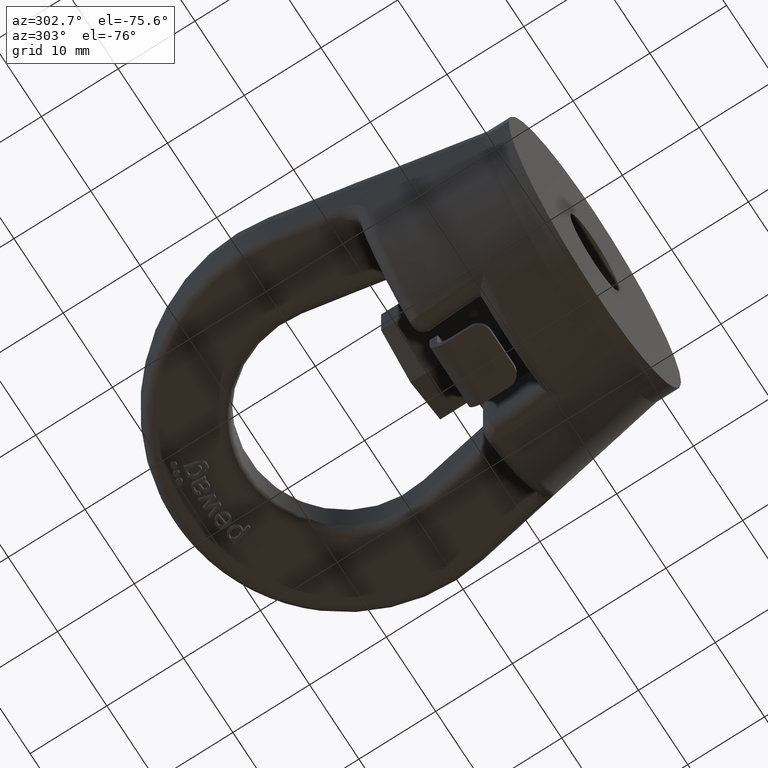
[diagram: clean part render]
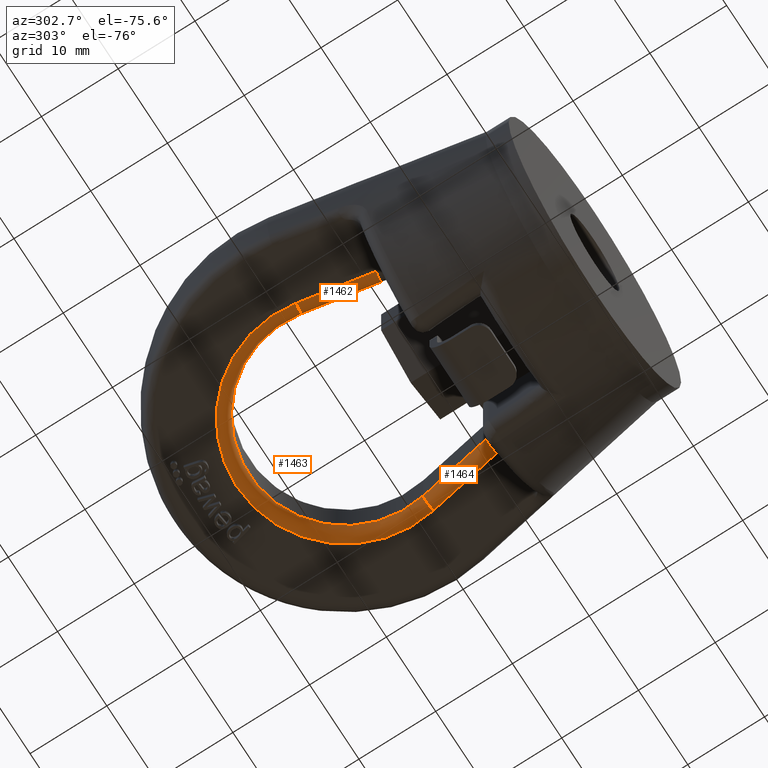
[diagram: same view with one multi-face feature highlighted, each face labeled with its STEP entity id]
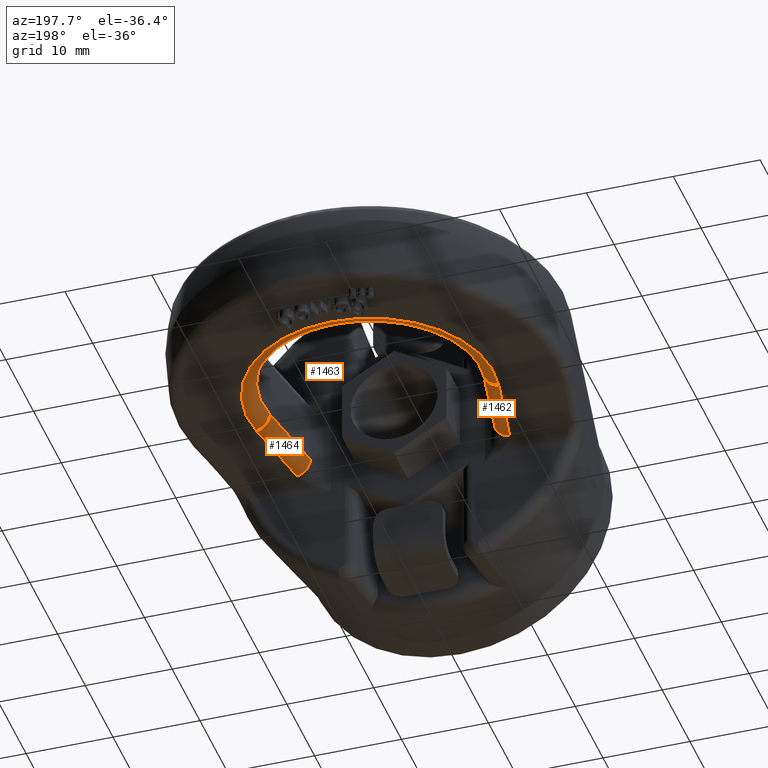
[diagram: same view with one multi-face feature highlighted, each face labeled with its STEP entity id]
A machine part, auxiliary view. The highlighted faces form ONE feature: a constant-radius fillet chain: 3 tangent blend faces with common blend radius 1.6667 mm. The faces share edges in the B-rep.
A second angle (auxiliary view) of the same feature is appended — it is thin or edge-on in the first view.
Their STEP definitions:
[1] entity #1462 (Cylinder):
#1086=CYLINDRICAL_SURFACE('',#5274,1.66666666666667);
#1229=FACE_OUTER_BOUND('',#1996,.T.);
#1462=ADVANCED_FACE('',(#1229),#1086,.T.);
#1738=CIRCLE('',#5272,1.66666666666667);
#1739=CIRCLE('',#5273,1.66666666666667);
#1996=EDGE_LOOP('',(#3424,#3425,#3426,#3427));
#2141=LINE('',#6734,#2411);
#2250=LINE('',#8279,#2548);
#2411=VECTOR('',#5468,1.);
#2548=VECTOR('',#5823,1.);
#3424=ORIENTED_EDGE('',*,*,#4645,.T.);
#3425=ORIENTED_EDGE('',*,*,#4585,.F.);
#3426=ORIENTED_EDGE('',*,*,#4646,.F.);
#3427=ORIENTED_EDGE('',*,*,#4350,.F.);
#3958=VERTEX_POINT('',#6723);
#3962=VERTEX_POINT('',#6733);
#4106=VERTEX_POINT('',#8278);
#4107=VERTEX_POINT('',#8280);
#4350=EDGE_CURVE('',#3962,#3958,#2141,.T.);
#4585=EDGE_CURVE('',#4106,#4107,#2250,.T.);
#4645=EDGE_CURVE('',#3962,#4107,#1738,.T.);
#4646=EDGE_CURVE('',#3958,#4106,#1739,.T.);
#5272=AXIS2_PLACEMENT_3D('',#8743,#5914,#5915);
#5273=AXIS2_PLACEMENT_3D('',#8756,#5916,#5917);
#5274=AXIS2_PLACEMENT_3D('',#8757,#5918,#5919);
#5468=DIRECTION('',(-0.179081367352328,0.983834266463219,-2.89715539685826E-16));
#5823=DIRECTION('',(0.179081367352328,-0.983834266463219,2.89715539685826E-16));
#5914=DIRECTION('',(-0.179081367352327,0.983834266463219,-4.19571656963315E-16));
#5915=DIRECTION('',(0.98383426646322,0.179081367352327,2.34187669256869E-15));
#5916=DIRECTION('',(-0.179081367352327,0.983834266463219,-6.0596564819698E-16));
#5917=DIRECTION('',(0.98383426646322,0.179081367352327,2.34187669256869E-15));
#5918=DIRECTION('',(-0.179081367352328,0.983834266463219,-2.89715539685826E-16));
#5919=DIRECTION('',(0.98383426646322,0.179081367352329,2.34187669256869E-15));
#6723=CARTESIAN_POINT('',(-12.2979283307902,30.2614829080959,-3.33333333333337));
#6733=CARTESIAN_POINT('',(-10.605770777561,20.9651356122539,-3.33333333333336));
#6734=CARTESIAN_POINT('',(-12.2979283307902,30.2614829080959,-3.33333333333337));
#8278=CARTESIAN_POINT('',(-13.9376521082289,29.9630139625087,-5.00000000000004));
#8279=CARTESIAN_POINT('',(-12.1911660682718,20.3681977210795,-5.00000000000003));
#8280=CARTESIAN_POINT('',(-12.2454945549997,20.6666666666667,-5.00000000000003));
#8743=CARTESIAN_POINT('',(-12.2454945549997,20.6666666666667,-3.33333333333337));
#8756=CARTESIAN_POINT('',(-13.9376521082289,29.9630139625087,-3.33333333333337));
#8757=CARTESIAN_POINT('',(-20.449427978287,65.7373009875079,-3.33333333333338));
[2] entity #1463 (Torus):
#1023=TOROIDAL_SURFACE('',#5276,14.1666666666667,1.66666666666667);
#1230=FACE_OUTER_BOUND('',#1997,.T.);
#1463=ADVANCED_FACE('',(#1230),#1023,.T.);
#1694=CIRCLE('',#5124,12.5);
#1724=CIRCLE('',#5236,14.1666666666667);
#1739=CIRCLE('',#5273,1.66666666666667);
#1740=CIRCLE('',#5275,1.66666666666667);
#1997=EDGE_LOOP('',(#3428,#3429,#3430,#3431));
#3428=ORIENTED_EDGE('',*,*,#4646,.T.);
#3429=ORIENTED_EDGE('',*,*,#4584,.F.);
#3430=ORIENTED_EDGE('',*,*,#4647,.F.);
#3431=ORIENTED_EDGE('',*,*,#4345,.F.);
#3955=VERTEX_POINT('',#6718);
#3958=VERTEX_POINT('',#6723);
#4105=VERTEX_POINT('',#8277);
#4106=VERTEX_POINT('',#8278);
#4345=EDGE_CURVE('',#3958,#3955,#1694,.T.);
#4584=EDGE_CURVE('',#4105,#4106,#1724,.T.);
#4646=EDGE_CURVE('',#3958,#4106,#1739,.T.);
#4647=EDGE_CURVE('',#3955,#4105,#1740,.T.);
#5124=AXIS2_PLACEMENT_3D('',#6724,#5458,#5459);
#5236=AXIS2_PLACEMENT_3D('',#8276,#5821,#5822);
#5273=AXIS2_PLACEMENT_3D('',#8756,#5916,#5917);
#5275=AXIS2_PLACEMENT_3D('',#8758,#5920,#5921);
#5276=AXIS2_PLACEMENT_3D('',#8759,#5922,#5923);
#5458=DIRECTION('',(2.34291072916505E-15,1.31989829693887E-16,-1.));
#5459=DIRECTION('',(-3.69778549322349E-31,1.,1.38777878078145E-16));
#5821=DIRECTION('',(-2.34291072916505E-15,-1.31989829693887E-16,1.));
#5822=DIRECTION('',(-3.26275190578543E-31,1.,1.2245106889248E-16));
#5916=DIRECTION('',(-0.179081367352327,0.983834266463219,-6.0596564819698E-16));
#5917=DIRECTION('',(0.98383426646322,0.179081367352327,2.34187669256869E-15));
#5920=DIRECTION('',(-0.179081367352327,-0.983834266463219,-4.19571656963315E-16));
#5921=DIRECTION('',(-0.98383426646322,0.179081367352327,-2.34187669256869E-15));
#5922=DIRECTION('',(-2.34291072916505E-15,-1.31989829693887E-16,1.));
#5923=DIRECTION('',(-2.91930433675539E-31,1.,1.3695185336659E-16));
#6718=CARTESIAN_POINT('',(12.2979283307903,30.2614829080959,-3.33333333333331));
#6723=CARTESIAN_POINT('',(-12.2979283307902,30.2614829080959,-3.33333333333337));
#6724=CARTESIAN_POINT('',(7.77772203098813E-15,32.5,-3.33333333333334));
#8276=CARTESIAN_POINT('',(1.16825732462632E-14,32.5,-5.));
#8277=CARTESIAN_POINT('',(13.937652108229,29.9630139625087,-4.99999999999997));
#8278=CARTESIAN_POINT('',(-13.9376521082289,29.9630139625087,-5.00000000000004));
#8756=CARTESIAN_POINT('',(-13.9376521082289,29.9630139625087,-3.33333333333337));
#8758=CARTESIAN_POINT('',(13.937652108229,29.9630139625087,-3.33333333333331));
#8759=CARTESIAN_POINT('',(7.77772203098813E-15,32.5,-3.33333333333334));
[3] entity #1464 (Cylinder):
#1087=CYLINDRICAL_SURFACE('',#5278,1.66666666666667);
#1231=FACE_OUTER_BOUND('',#1998,.T.);
#1464=ADVANCED_FACE('',(#1231),#1087,.T.);
#1740=CIRCLE('',#5275,1.66666666666667);
#1741=CIRCLE('',#5277,1.66666666666667);
#1998=EDGE_LOOP('',(#3432,#3433,#3434,#3435));
#2166=LINE('',#6883,#2436);
#2253=LINE('',#8297,#2551);
#2436=VECTOR('',#5509,1.);
#2551=VECTOR('',#5828,1.);
#3432=ORIENTED_EDGE('',*,*,#4647,.T.);
#3433=ORIENTED_EDGE('',*,*,#4591,.F.);
#3434=ORIENTED_EDGE('',*,*,#4648,.F.);
#3435=ORIENTED_EDGE('',*,*,#4385,.F.);
#3955=VERTEX_POINT('',#6718);
#3996=VERTEX_POINT('',#6884);
#4105=VERTEX_POINT('',#8277);
#4112=VERTEX_POINT('',#8296);
#4385=EDGE_CURVE('',#3955,#3996,#2166,.T.);
#4591=EDGE_CURVE('',#4112,#4105,#2253,.T.);
#4647=EDGE_CURVE('',#3955,#4105,#1740,.T.);
#4648=EDGE_CURVE('',#3996,#4112,#1741,.T.);
#5275=AXIS2_PLACEMENT_3D('',#8758,#5920,#5921);
#5277=AXIS2_PLACEMENT_3D('',#8760,#5924,#5925);
#5278=AXIS2_PLACEMENT_3D('',#8761,#5926,#5927);
#5509=DIRECTION('',(-0.179081367352328,-0.983834266463219,-5.49427774240808E-16));
#5828=DIRECTION('',(0.179081367352328,0.983834266463219,5.49427774240808E-16));
#5920=DIRECTION('',(-0.179081367352327,-0.983834266463219,-4.19571656963315E-16));
#5921=DIRECTION('',(-0.98383426646322,0.179081367352327,-2.34187669256869E-15));
#5924=DIRECTION('',(-0.179081367352327,-0.983834266463219,1.81483881247535E-15));
#5925=DIRECTION('',(-0.98383426646322,0.179081367352327,-2.34187669256869E-15));
#5926=DIRECTION('',(-0.179081367352328,-0.983834266463219,-5.49427774240808E-16));
#5927=DIRECTION('',(-0.98383426646322,0.179081367352329,-2.34187669256869E-15));
#6718=CARTESIAN_POINT('',(12.2979283307903,30.2614829080959,-3.33333333333331));
#6883=CARTESIAN_POINT('',(10.5514422908331,20.6666666666667,-3.33333333333331));
#6884=CARTESIAN_POINT('',(10.605770777561,20.9651356122539,-3.33333333333331));
#8277=CARTESIAN_POINT('',(13.937652108229,29.9630139625087,-4.99999999999997));
#8296=CARTESIAN_POINT('',(12.2454945549997,20.6666666666667,-4.99999999999998));
#8297=CARTESIAN_POINT('',(13.937652108229,29.9630139625087,-4.99999999999997));
#8758=CARTESIAN_POINT('',(13.937652108229,29.9630139625087,-3.33333333333331));
#8760=CARTESIAN_POINT('',(12.2454945549997,20.6666666666667,-3.33333333333331));
#8761=CARTESIAN_POINT('',(18.8779913077809,57.1041680888788,-3.33333333333329));